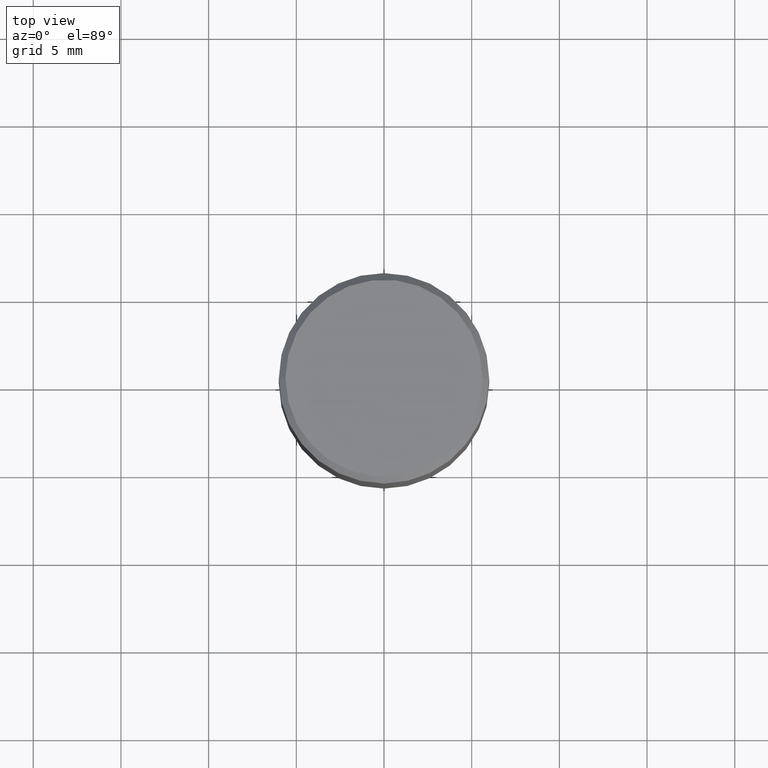
[diagram: clean part render]
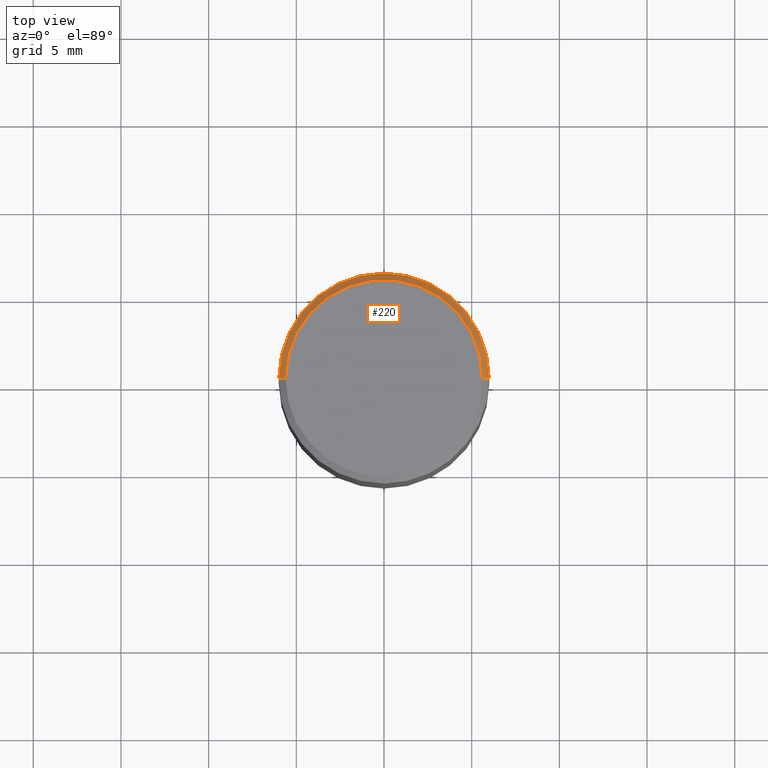
[diagram: same view with one face highlighted and labeled with its STEP entity id]
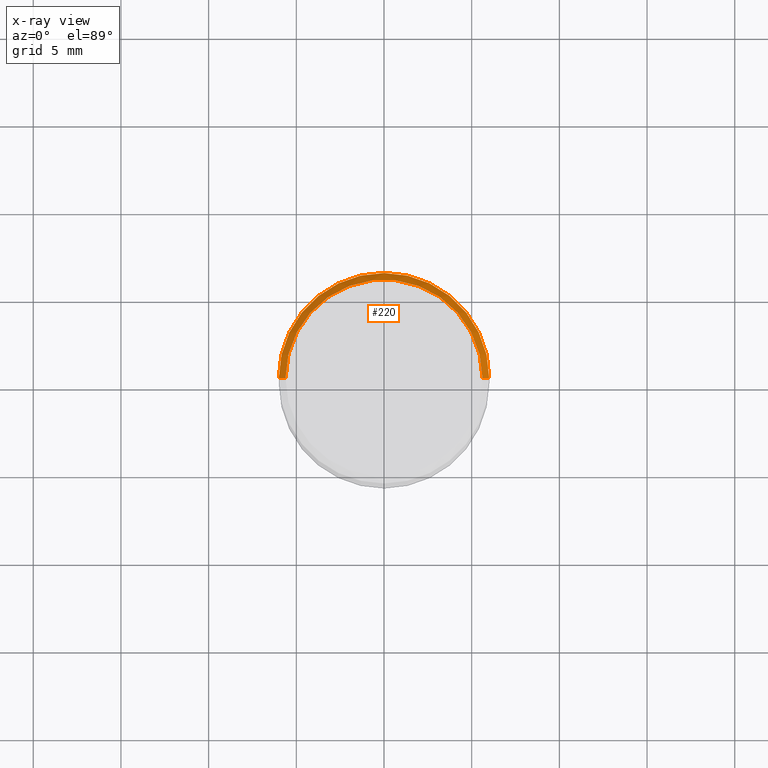
[diagram: x-ray of the same camera — body ghosted, the highlighted face saturated]
A machine part, top view. The second image highlights one B-rep face of the part: STEP entity #220.
The next image is the same camera in x-ray: the body ghosted, the highlighted face saturated — about 0% of this face is hidden behind the body in this view.
In plain terms, the highlighted conical surface has half-angle 45 deg.
Its self-contained STEP definition (entity closure, byte-faithful):
#22 = LINE ( 'NONE', #73, #330 ) ;
#33 = AXIS2_PLACEMENT_3D ( 'NONE', #400, #235, #271 ) ;
#36 = ORIENTED_EDGE ( 'NONE', *, *, #112, .F. ) ;
#54 = AXIS2_PLACEMENT_3D ( 'NONE', #327, #386, #257 ) ;
#56 = ORIENTED_EDGE ( 'NONE', *, *, #97, .T. ) ;
#59 = VERTEX_POINT ( 'NONE', #100 ) ;
#73 = CARTESIAN_POINT ( 'NONE',  ( -0.2361999999999999933, 1.597003564386848854E-15, -0.01499999999999999944 ) ) ;
#75 = LINE ( 'NONE', #466, #258 ) ;
#97 = EDGE_CURVE ( 'NONE', #441, #159, #208, .T. ) ;
#100 = CARTESIAN_POINT ( 'NONE',  ( -0.2212000000000000077, 1.570817454345525709E-15, 4.701447564591265970E-17 ) ) ;
#103 = DIRECTION ( 'NONE',  ( -1.000000000000000000, 6.982962677686266711E-15, 0.000000000000000000 ) ) ;
#112 = EDGE_CURVE ( 'NONE', #59, #159, #22, .T. ) ;
#113 = CARTESIAN_POINT ( 'NONE',  ( -0.2361999999999999933, 4.673423884151294145E-16, -0.01499999999999999944 ) ) ;
#144 = FACE_OUTER_BOUND ( 'NONE', #309, .T. ) ;
#159 = VERTEX_POINT ( 'NONE', #113 ) ;
#191 = ORIENTED_EDGE ( 'NONE', *, *, #276, .T. ) ;
#208 = CIRCLE ( 'NONE', #54, 0.2361999999999999933 ) ;
#216 = AXIS2_PLACEMENT_3D ( 'NONE', #261, #324, #103 ) ;
#220 = ADVANCED_FACE ( 'NONE', ( #144 ), #378, .T. ) ;
#235 = DIRECTION ( 'NONE',  ( -2.445468806185136597E-29, 3.491481338843145583E-15, 1.000000000000000000 ) ) ;
#241 = VERTEX_POINT ( 'NONE', #353 ) ;
#257 = DIRECTION ( 'NONE',  ( 1.000000000000000000, -6.982962677686266711E-15, 0.000000000000000000 ) ) ;
#258 = VECTOR ( 'NONE', #269, 39.37007874015748143 ) ;
#261 = CARTESIAN_POINT ( 'NONE',  ( 3.668203209277705088E-31, -5.237222008264718399E-17, -0.01499999999999999944 ) ) ;
#267 = ORIENTED_EDGE ( 'NONE', *, *, #346, .F. ) ;
#269 = DIRECTION ( 'NONE',  ( 0.7071067811865459074, -7.319954787623251312E-15, -0.7071067811865492381 ) ) ;
#271 = DIRECTION ( 'NONE',  ( 1.000000000000000000, -6.982962677686267499E-15, 4.877828720335458505E-29 ) ) ;
#276 = EDGE_CURVE ( 'NONE', #241, #441, #75, .T. ) ;
#309 = EDGE_LOOP ( 'NONE', ( #267, #191, #56, #36 ) ) ;
#320 = CARTESIAN_POINT ( 'NONE',  ( 0.2361999999999999933, -1.701748004552143407E-15, -0.01499999999999999944 ) ) ;
#324 = DIRECTION ( 'NONE',  ( 2.445468806185136597E-29, -3.491481338843145583E-15, -1.000000000000000000 ) ) ;
#327 = CARTESIAN_POINT ( 'NONE',  ( 3.668203209277705088E-31, -5.237222008264718399E-17, -0.01499999999999999944 ) ) ;
#330 = VECTOR ( 'NONE', #355, 39.37007874015748143 ) ;
#346 = EDGE_CURVE ( 'NONE', #241, #59, #405, .T. ) ;
#353 = CARTESIAN_POINT ( 'NONE',  ( 0.2212000000000000077, -1.595182002131672613E-15, 4.701447564593453210E-17 ) ) ;
#355 = DIRECTION ( 'NONE',  ( -0.7071067811865459074, 2.468850131082239706E-15, -0.7071067811865492381 ) ) ;
#378 = CONICAL_SURFACE ( 'NONE', #216, 0.2361999999999999933, 0.7853981633974459475 ) ;
#386 = DIRECTION ( 'NONE',  ( -2.445468806185136597E-29, 3.491481338843145583E-15, 1.000000000000000000 ) ) ;
#400 = CARTESIAN_POINT ( 'NONE',  ( -1.149724336312568549E-45, 1.641501643732376111E-31, 4.701447564592355584E-17 ) ) ;
#405 = CIRCLE ( 'NONE', #33, 0.2212000000000000077 ) ;
#441 = VERTEX_POINT ( 'NONE', #320 ) ;
#466 = CARTESIAN_POINT ( 'NONE',  ( 0.2361999999999999933, -1.672821847156282947E-15, -0.01499999999999999944 ) ) ;